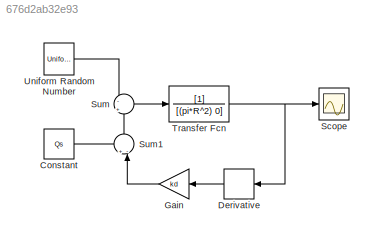
MODEL slx_676d2ab32e93
KIND model
BLOCK [Constant] Constant
  Value = Qs
BLOCK [Derivative] Derivative
BLOCK [Gain] Gain
  Gain = kd
  OutDataTypeStr = Inherit: Inherit via internal rule
  ParamDataTypeStr = Inherit: Inherit via internal rule
  SaturateOnIntegerOverflow = off
BLOCK [Scope] Scope
  DataFormat = StructureWithTime
  Floating = off
  NumInputPorts = 1
  Ports = [1]
  SampleTime = 0
  ShowLegends = off
BLOCK [Sum] Sum
  IconShape = round
  InputSameDT = off
  Inputs = -|+
  OutDataTypeStr = Inherit: Inherit via internal rule
  Ports = [2, 1]
  SaturateOnIntegerOverflow = off
BLOCK [Sum] Sum1
  IconShape = round
  InputSameDT = off
  Inputs = +-|
  OutDataTypeStr = Inherit: Inherit via internal rule
  Ports = [2, 1]
  SaturateOnIntegerOverflow = off
BLOCK [TransferFcn] Transfer Fcn
  Denominator = [(pi*R^2) 0]
BLOCK [UniformRandomNumber] Uniform Random Number
  Maximum = (c+delta)*Qs
  Minimum = (c-delta)*Qs
  SampleTime = 0.1
LINE Constant:1 -> Sum1:1
LINE Derivative:1 -> Gain:1
LINE Gain:1 -> Sum1:2
LINE Sum1:1 -> Sum:2
LINE Sum:1 -> Transfer Fcn:1
NET Transfer Fcn:1 -> Derivative:1, Scope:1
LINE Uniform Random Number:1 -> Sum:1
note: NET lines group one-source signal fan-out (src -> all destinations, sorted); 1:1 wires keep LINE
